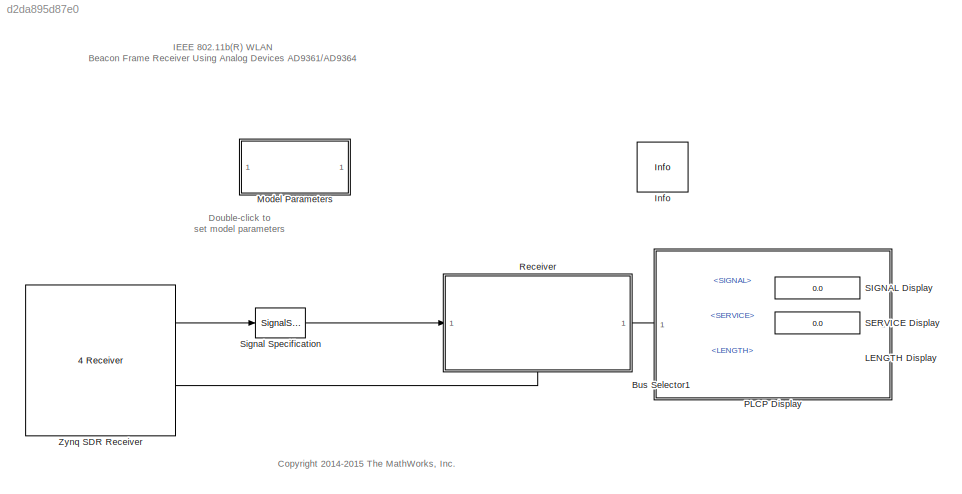
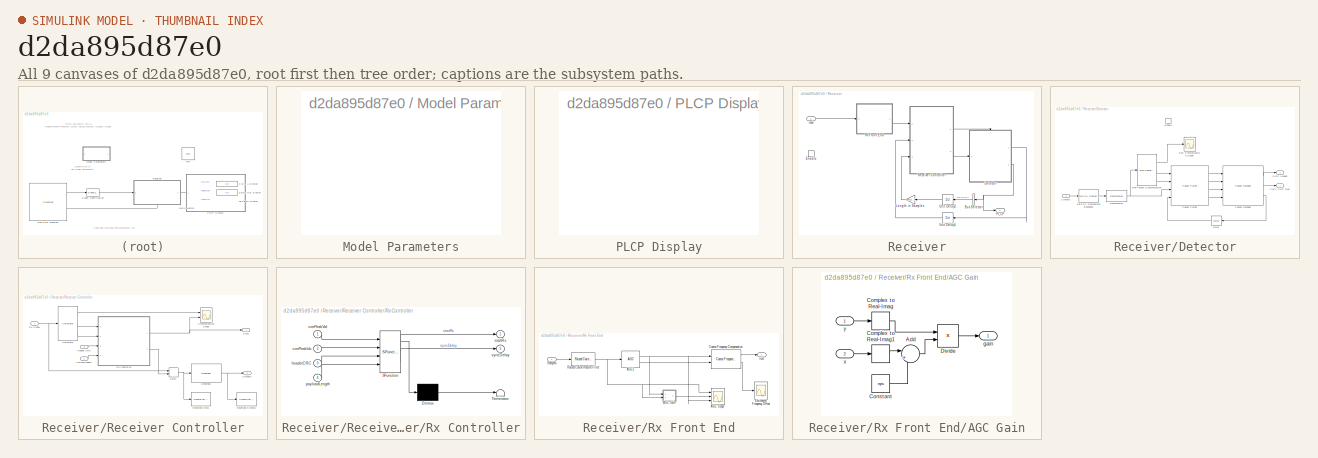
[diagram: thumbnail index - all 9 canvases of the model, root first then tree order]
MODEL slx_d2da895d87e0
KIND model
CONFIG AbsTol = auto
CONFIG FixedStep = auto
CONFIG InitFcn = load('commwlan80211BusTypes')
CONFIG MaxStep = auto
CONFIG MinStep = auto
CONFIG PostLoadFcn = zynqRadioWLAN80211BeaconRxAD9361AD9364SL_init('scope');\n
CONFIG PreLoadFcn = load('commwlan80211BusTypes')\nzynqRadioWLAN80211BeaconRxAD9361AD9364SL_init('init');\nopenMPDUGUI = true;\n\n
CONFIG RelTol = 1e-3
CONFIG SampleTimeConstraint = Unconstrained
CONFIG Solver = FixedStepDiscrete
CONFIG SolverMode = SingleTasking
CONFIG SolverName = FixedStepDiscrete
CONFIG StartTime = 0.0
CONFIG StopTime = Inf
WORKSPACE source: external: MAT-File  (data not in archive)
BLOCK [BusSelector] Bus Selector1
  OutputSignals = SIGNAL,SERVICE,LENGTH
  Ports = [1, 3]
BLOCK [Reference] Info  REF=sdrzblksprivate/Info
  Ports = []
  SourceBlock = sdrzblksprivate/Info
  SourceType = Info
BLOCK [Display] LENGTH Display
  Decimation = 1
  Ports = [1]
BLOCK [SubSystem] Model Parameters
  Ports = []
  RequestExecContextInheritance = off
  Variant = off
BLOCK [SubSystem] PLCP Display
  Ports = []
  RequestExecContextInheritance = off
  Variant = off
BLOCK [SubSystem] Receiver
  Ports = [1, 1, 1]
  RequestExecContextInheritance = off
  Variant = off
BLOCK [BusSelector] Receiver/Bus Selector
  OutputSignals = LENGTH
  Ports = [1, 1]
BLOCK [SubSystem] Receiver/Detector
  CloseFcn = clear BeaconFrameBodyType rcvd
  Ports = [1, 2, 1]
  RequestExecContextInheritance = off
  Variant = off
BLOCK [Reference] Receiver/Detector/DBPSK Demodulator Baseband  REF=commdigbbndpm3/DBPSK
Demodulator
Baseband
  Ports = [1, 1]
  SourceBlock = commdigbbndpm3/DBPSK\nDemodulator\nBaseband
  SourceType = DBPSK Demodulator Baseband
BLOCK [Delay] Receiver/Detector/Delay
  DelayLength = 1
  InitialCondition = 0
  InputPortMap = u0
  InputProcessing = Columns as channels (frame based)
  Ports = [1, 1]
  UserDataPersistent = on
BLOCK [Reference] Receiver/Detector/Descrambler  REF=commsequence2/Descrambler
  Ports = [1, 1]
  SourceBlock = commsequence2/Descrambler
  SourceType = Descrambler
BLOCK [EnablePort] Receiver/Detector/Enable
  Ports = []
  PropagateVarSize = During execution
  StatesWhenEnabling = reset
BLOCK [Reference] Receiver/Detector/Fine Packet Synchronization  REF=commwlan80211BeaconLib/Fine Packet
Synchronization
  Ports = [1, 3]
  SourceBlock = commwlan80211BeaconLib/Fine Packet\nSynchronization
  SourceType = SubSystem
BLOCK [Outport] Receiver/Detector/PLCP CRC Flag
  IconDisplay = Port number
  InitialOutput = 1
BLOCK [Outport] Receiver/Detector/PLCP Header
  IconDisplay = Port number
  Port = 2
BLOCK [Reference] Receiver/Detector/Packet Decoder  REF=commwlan80211BeaconLib/Packet Decoder
  Ports = [4, 3]
  SourceBlock = commwlan80211BeaconLib/Packet Decoder
  SourceType = SubSystem
BLOCK [Reference] Receiver/Detector/Packet Parser  REF=commwlan80211BeaconLib/Packet Parser
  Ports = [4, 4]
  SourceBlock = commwlan80211BeaconLib/Packet Parser
  SourceType = SubSystem
BLOCK [Scope] Receiver/Detector/SFD Synchronization Scope
  DefaultConfigurationName = spbscopes.TimeScopeBlockCfg
  Ports = [1]
  Priority = 10
  ScopeSpecificationString = spbscopes.TimeScopeBlockCfg('CurrentConfiguration', extmgr.ConfigurationSet(extmgr.Configuration('Core','General UI',true),extmgr.Configuration('Core','Source UI',true),extmgr.Configuration('Sources','WiredSimulink',true),extmgr.Configuration('Visuals','Time Domain',true,'DisplayPropertyDefaults',struct('MinYLimReal','-15.5','MaxYLimReal','19.5','YLabelReal','Amplitude','MinYLimMag','0','MaxYLimMa...<+1393ch>
BLOCK [Inport] Receiver/Detector/Symbols
  IconDisplay = Port number
BLOCK [EnablePort] Receiver/Enable
  Ports = []
BLOCK [Gain] Receiver/Length in Samples
  Gain = p80211.SamplesPerChip*p80211.SpreadingRate
  OutDataTypeStr = uint32
BLOCK [Outport] Receiver/PLCP
  IconDisplay = Port number
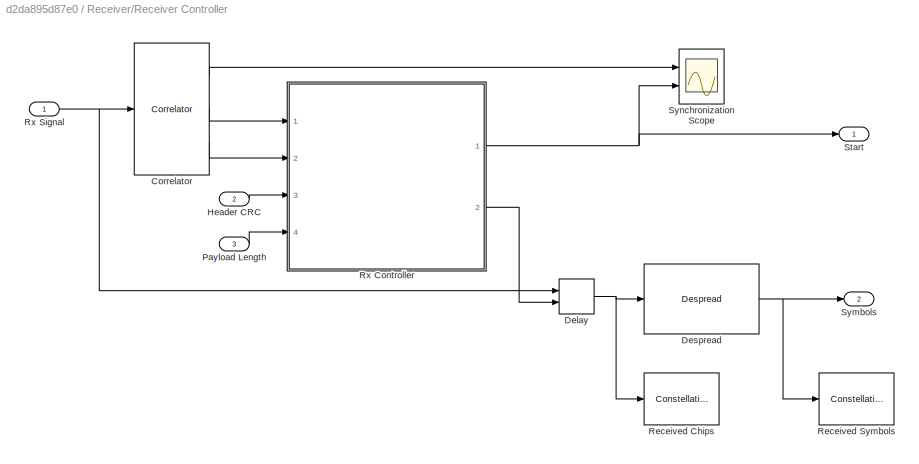
BLOCK [SubSystem] Receiver/Receiver Controller
  Ports = [3, 2]
  RequestExecContextInheritance = off
  Variant = off
BLOCK [Reference] Receiver/Receiver Controller/Correlator  REF=commwlan80211BeaconLib/Correlator
  Ports = [1, 3]
  SourceBlock = commwlan80211BeaconLib/Correlator
  SourceType = SubSystem
BLOCK [Delay] Receiver/Receiver Controller/Delay
  DelayLengthSource = Input port
  DelayLengthUpperLimit = p80211.SamplesPerChannelFrame
  InputPortMap = u0,p1
  InputProcessing = Columns as channels (frame based)
  Ports = [2, 1]
BLOCK [Reference] Receiver/Receiver Controller/Despread  REF=commwlan80211BeaconLib/Despread
  Ports = [1, 1]
  SourceBlock = commwlan80211BeaconLib/Despread
  SourceType = SubSystem
BLOCK [Inport] Receiver/Receiver Controller/Header CRC
  IconDisplay = Port number
  Port = 2
BLOCK [Inport] Receiver/Receiver Controller/Payload Length
  IconDisplay = Port number
  Port = 3
BLOCK [ConstellationDiagram] Receiver/Receiver Controller/Received Chips
  Ports = [1]
  Priority = 1
  ScopeSpecificationString = comm.scopes.ConstellationDiagramBlockCfg('CurrentConfiguration', extmgr.ConfigurationSet(extmgr.Configuration('Core','General UI',true,'ShowConfiguration',true),extmgr.Configuration('Core','Source UI',true,'ShowPlaybackCmdMode',false),extmgr.Configuration('Sources','WiredSimulink',true),extmgr.Configuration('Visuals','Constellation',true,'MinYLim','-0.88387','MaxYLim','0.88387','MinXLim','-0.88387...<+1559ch>
  Tag = ScatterPlot
BLOCK [ConstellationDiagram] Receiver/Receiver Controller/Received Symbols
  Ports = [1]
  Priority = 2
  ScopeSpecificationString = comm.scopes.ConstellationDiagramBlockCfg('CurrentConfiguration', extmgr.ConfigurationSet(extmgr.Configuration('Core','General UI',true,'ShowConfiguration',true),extmgr.Configuration('Core','Source UI',true,'ShowPlaybackCmdMode',false),extmgr.Configuration('Sources','WiredSimulink',true),extmgr.Configuration('Visuals','Constellation',true,'MinYLim','-1.4322','MaxYLim','1.5131','MinXLim','-1.4322','...<+1560ch>
  Tag = ScatterPlot
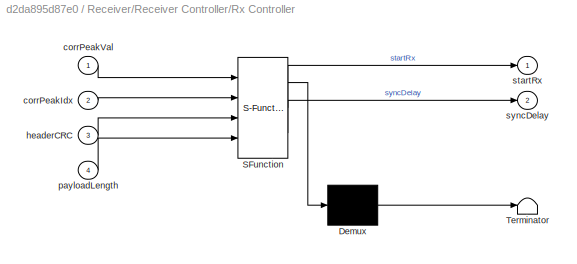
BLOCK [SubSystem] Receiver/Receiver Controller/Rx Controller
  ErrorFcn = Stateflow.Translate.translate
  PermitHierarchicalResolution = ExplicitOnly
  Ports = [4, 2]
  RequestExecContextInheritance = off
  SFBlockType = MATLAB Function
  TreatAsAtomicUnit = on
  Variant = off
BLOCK [Demux] Receiver/Receiver Controller/Rx Controller/ Demux 
  Outputs = 1
  Ports = [1, 1]
BLOCK [S-Function] Receiver/Receiver Controller/Rx Controller/ SFunction 
  EnableBusSupport = off
  FunctionName = sf_sfun
  Parameters = p80211
  PortCounts = [4 3]
  Ports = [4, 3]
  SFunctionDeploymentMode = off
  Tag = Stateflow S-Function zynqRadioWLAN80211BeaconRxAD9361AD9364SL 4
BLOCK [Terminator] Receiver/Receiver Controller/Rx Controller/ Terminator 
BLOCK [Inport] Receiver/Receiver Controller/Rx Controller/corrPeakIdx
  IconDisplay = Port number
  Port = 2
BLOCK [Inport] Receiver/Receiver Controller/Rx Controller/corrPeakVal
  IconDisplay = Port number
BLOCK [Inport] Receiver/Receiver Controller/Rx Controller/headerCRC
  IconDisplay = Port number
  Port = 3
BLOCK [Inport] Receiver/Receiver Controller/Rx Controller/payloadLength
  IconDisplay = Port number
  Port = 4
BLOCK [Outport] Receiver/Receiver Controller/Rx Controller/startRx
  IconDisplay = Port number
BLOCK [Outport] Receiver/Receiver Controller/Rx Controller/syncDelay
  IconDisplay = Port number
  Port = 2
BLOCK [Inport] Receiver/Receiver Controller/Rx Signal
  IconDisplay = Port number
BLOCK [Outport] Receiver/Receiver Controller/Start
  IconDisplay = Port number
BLOCK [Outport] Receiver/Receiver Controller/Symbols
  IconDisplay = Port number
  Port = 2
BLOCK [Scope] Receiver/Receiver Controller/Synchronization Scope
  DefaultConfigurationName = spbscopes.TimeScopeBlockCfg
  NumInputPorts = 2
  Ports = [2]
  Priority = 1
  ScopeSpecificationString = spbscopes.TimeScopeBlockCfg('CurrentConfiguration', extmgr.ConfigurationSet(extmgr.Configuration('Core','General UI',true),extmgr.Configuration('Core','Source UI',true),extmgr.Configuration('Sources','WiredSimulink',true),extmgr.Configuration('Visuals','Time Domain',true,'DisplayLayoutDimensions',[2 1],'DisplayPropertyDefaults',struct('YLabelReal','Amplitude','AxesColor',[0 0 0],'AxesTickColor',[0...<+1986ch>
BLOCK [SubSystem] Receiver/Rx Front End
  Ports = [1, 1]
  RequestExecContextInheritance = off
  Variant = off
BLOCK [SubSystem] Receiver/Rx Front End/AGC Gain
  Ports = [2, 1]
  RequestExecContextInheritance = off
  Variant = off
BLOCK [Sum] Receiver/Rx Front End/AGC Gain/Add
  IconShape = round
  InputSameDT = off
  Inputs = |++
  OutDataTypeStr = Inherit: Inherit via internal rule
  Ports = [2, 1]
  SaturateOnIntegerOverflow = off
BLOCK [ComplexToRealImag] Receiver/Rx Front End/AGC Gain/Complex to Real-Imag
  Output = Real
  Ports = [1, 1]
BLOCK [ComplexToRealImag] Receiver/Rx Front End/AGC Gain/Complex to Real-Imag1
  Output = Real
  Ports = [1, 1]
BLOCK [Constant] Receiver/Rx Front End/AGC Gain/Constant
  Value = eps
BLOCK [Product] Receiver/Rx Front End/AGC Gain/Divide
  InputSameDT = off
  Inputs = */
  OutDataTypeStr = Inherit: Inherit via internal rule
  Ports = [2, 1]
  RndMeth = Floor
  SaturateOnIntegerOverflow = off
BLOCK [Outport] Receiver/Rx Front End/AGC Gain/gain
  IconDisplay = Port number
BLOCK [Inport] Receiver/Rx Front End/AGC Gain/x
  IconDisplay = Port number
  Port = 2
BLOCK [Inport] Receiver/Rx Front End/AGC Gain/y
  IconDisplay = Port number
BLOCK [Scope] Receiver/Rx Front End/AGC Scope
  DefaultConfigurationName = spbscopes.TimeScopeBlockCfg
  NumInputPorts = 3
  Ports = [3]
  ScopeSpecificationString = spbscopes.TimeScopeBlockCfg('CurrentConfiguration', extmgr.ConfigurationSet(extmgr.Configuration('Core','General UI',true),extmgr.Configuration('Core','Source UI',true),extmgr.Configuration('Sources','WiredSimulink',true),extmgr.Configuration('Visuals','Time Domain',true,'DisplayLayoutDimensions',[3 1],'DisplayPropertyDefaults',struct('YLabelReal','Amplitude','AxesColor',[0 0 0],'AxesTickColor',[0...<+2632ch>
BLOCK [Reference] Receiver/Rx Front End/AGC1  REF=commrfcorlib/AGC
  Ports = [1, 2]
  SourceBlock = commrfcorlib/AGC
  SourceType = AGC
BLOCK [Reference] Receiver/Rx Front End/Coarse Frequency Compensation  REF=commwlan80211BeaconLib/Coarse Frequency
Compensation
  Ports = [2, 2]
  SourceBlock = commwlan80211BeaconLib/Coarse Frequency\nCompensation
  SourceType = Coarse Frequency Compensation
BLOCK [Scope] Receiver/Rx Front End/Estimated Frequency Offset
  DefaultConfigurationName = spbscopes.TimeScopeBlockCfg
  Ports = [1]
  ScopeSpecificationString = spbscopes.TimeScopeBlockCfg('CurrentConfiguration', extmgr.ConfigurationSet(extmgr.Configuration('Core','General UI',true),extmgr.Configuration('Core','Source UI',true),extmgr.Configuration('Sources','WiredSimulink',true),extmgr.Configuration('Visuals','Time Domain',true,'DisplayPropertyDefaults',struct('MinYLimReal','-62377.3','MaxYLimReal','62424.1','YLabelReal','Amplitude','MinYLimMag','0','Max...<+1411ch>
BLOCK [Reference] Receiver/Rx Front End/Raised Cosine Receive Filter  REF=commfilt2/Raised Cosine
Receive Filter
  Ports = [1, 1]
  SourceBlock = commfilt2/Raised Cosine\nReceive Filter
  SourceType = Raised Cosine Receive Filter
  UserDataPersistent = on
BLOCK [Inport] Receiver/Rx Front End/Samples
  IconDisplay = Port number
BLOCK [Outport] Receiver/Rx Front End/rcvd
  IconDisplay = Port number
BLOCK [UnitDelay] Receiver/Unit Delay1
  InitialCondition = 1
  InputProcessing = Elements as channels (sample based)
  SampleTime = -1
BLOCK [UnitDelay] Receiver/Unit Delay2
  InitialCondition = 1
  InputProcessing = Elements as channels (sample based)
  SampleTime = -1
BLOCK [Inport] Receiver/rcvd
  IconDisplay = Port number
BLOCK [Display] SERVICE Display
  Decimation = 1
  Format = hex (Stored Integer)
  Ports = [1]
BLOCK [Display] SIGNAL Display
  Decimation = 1
  Format = hex (Stored Integer)
  Ports = [1]
BLOCK [SignalSpecification] Signal Specification
  SampleTime = p80211.RadioFrameLength/p80211.RadioBasebandRate
BLOCK [Reference] Zynq SDR Receiver  REF=zc706fmc234_lib/ZC706 and 
FMCOMMS2//3//4 
Receiver
  Ports = [0, 2]
  SourceBlock = zc706fmc234_lib/ZC706 and \nFMCOMMS2//3//4 \nReceiver
  SourceType = comm.internal.SDRRxZC706FMC234SL
ANNOTATION (root): IEEE 802.11b(R) WLAN Beacon Frame Receiver Using Analog Devices AD9361/AD9364
ANNOTATION (root): <copyright redacted>
ANNOTATION (root): Double-click to set model parameters
LINE Bus Selector1:1 -> SIGNAL Display:1
LINE Bus Selector1:2 -> SERVICE Display:1
LINE Bus Selector1:3 -> LENGTH Display:1
LINE Receiver/Bus Selector:1 -> Receiver/Unit Delay2:1
LINE Receiver/Detector/DBPSK Demodulator Baseband:1 -> Receiver/Detector/Descrambler:1
LINE Receiver/Detector/Delay:1 -> Receiver/Detector/Packet Parser:4
NET Receiver/Detector/Descrambler:1 -> Receiver/Detector/Fine Packet Synchronization:1, Receiver/Detector/Packet Parser:3
LINE Receiver/Detector/Fine Packet Synchronization:1 -> Receiver/Detector/SFD Synchronization Scope:1
LINE Receiver/Detector/Fine Packet Synchronization:2 -> Receiver/Detector/Packet Parser:1
LINE Receiver/Detector/Fine Packet Synchronization:3 -> Receiver/Detector/Packet Parser:2
LINE Receiver/Detector/Packet Decoder:1 -> Receiver/Detector/PLCP Header:1
LINE Receiver/Detector/Packet Decoder:2 -> Receiver/Detector/PLCP CRC Flag:1
LINE Receiver/Detector/Packet Decoder:3 -> Receiver/Detector/Delay:1
LINE Receiver/Detector/Packet Parser:1 -> Receiver/Detector/Packet Decoder:1
LINE Receiver/Detector/Packet Parser:2 -> Receiver/Detector/Packet Decoder:2
LINE Receiver/Detector/Packet Parser:3 -> Receiver/Detector/Packet Decoder:3
LINE Receiver/Detector/Packet Parser:4 -> Receiver/Detector/Packet Decoder:4
LINE Receiver/Detector/Symbols:1 -> Receiver/Detector/DBPSK Demodulator Baseband:1
LINE Receiver/Detector:1 -> Receiver/Unit Delay1:1
NET Receiver/Detector:2 -> Receiver/Bus Selector:1, Receiver/PLCP:1
LINE Receiver/Length in Samples:1 -> Receiver/Receiver Controller:3
LINE Receiver/Receiver Controller/Correlator:1 -> Receiver/Receiver Controller/Synchronization Scope:1
LINE Receiver/Receiver Controller/Correlator:2 -> Receiver/Receiver Controller/Rx Controller:1
LINE Receiver/Receiver Controller/Correlator:3 -> Receiver/Receiver Controller/Rx Controller:2
NET Receiver/Receiver Controller/Delay:1 -> Receiver/Receiver Controller/Despread:1, Receiver/Receiver Controller/Received Chips:1
NET Receiver/Receiver Controller/Despread:1 -> Receiver/Receiver Controller/Received Symbols:1, Receiver/Receiver Controller/Symbols:1
LINE Receiver/Receiver Controller/Header CRC:1 -> Receiver/Receiver Controller/Rx Controller:3
LINE Receiver/Receiver Controller/Payload Length:1 -> Receiver/Receiver Controller/Rx Controller:4
NET Receiver/Receiver Controller/Rx Controller:1 -> Receiver/Receiver Controller/Start:1, Receiver/Receiver Controller/Synchronization Scope:2
LINE Receiver/Receiver Controller/Rx Controller:2 -> Receiver/Receiver Controller/Delay:2
NET Receiver/Receiver Controller/Rx Signal:1 -> Receiver/Receiver Controller/Correlator:1, Receiver/Receiver Controller/Delay:1
LINE Receiver/Receiver Controller:1 -> Receiver/Detector:enable
LINE Receiver/Receiver Controller:2 -> Receiver/Detector:1
LINE Receiver/Rx Front End/AGC Gain/Add:1 -> Receiver/Rx Front End/AGC Gain/Divide:2
LINE Receiver/Rx Front End/AGC Gain/Complex to Real-Imag1:1 -> Receiver/Rx Front End/AGC Gain/Add:1
LINE Receiver/Rx Front End/AGC Gain/Complex to Real-Imag:1 -> Receiver/Rx Front End/AGC Gain/Divide:1
LINE Receiver/Rx Front End/AGC Gain/Constant:1 -> Receiver/Rx Front End/AGC Gain/Add:2
LINE Receiver/Rx Front End/AGC Gain/Divide:1 -> Receiver/Rx Front End/AGC Gain/gain:1
LINE Receiver/Rx Front End/AGC Gain/x:1 -> Receiver/Rx Front End/AGC Gain/Complex to Real-Imag1:1
LINE Receiver/Rx Front End/AGC Gain/y:1 -> Receiver/Rx Front End/AGC Gain/Complex to Real-Imag:1
LINE Receiver/Rx Front End/AGC Gain:1 -> Receiver/Rx Front End/AGC Scope:2
NET Receiver/Rx Front End/AGC1:1 -> Receiver/Rx Front End/AGC Gain:1, Receiver/Rx Front End/AGC Scope:3, Receiver/Rx Front End/Coarse Frequency Compensation:1
LINE Receiver/Rx Front End/AGC1:2 -> Receiver/Rx Front End/Coarse Frequency Compensation:2
LINE Receiver/Rx Front End/Coarse Frequency Compensation:1 -> Receiver/Rx Front End/rcvd:1
LINE Receiver/Rx Front End/Coarse Frequency Compensation:2 -> Receiver/Rx Front End/Estimated Frequency Offset:1
NET Receiver/Rx Front End/Raised Cosine Receive Filter:1 -> Receiver/Rx Front End/AGC Gain:2, Receiver/Rx Front End/AGC Scope:1, Receiver/Rx Front End/AGC1:1
LINE Receiver/Rx Front End/Samples:1 -> Receiver/Rx Front End/Raised Cosine Receive Filter:1
LINE Receiver/Rx Front End:1 -> Receiver/Receiver Controller:1
LINE Receiver/Unit Delay1:1 -> Receiver/Receiver Controller:2
LINE Receiver/Unit Delay2:1 -> Receiver/Length in Samples:1
LINE Receiver/rcvd:1 -> Receiver/Rx Front End:1
LINE Receiver:1 -> Bus Selector1:1
LINE Signal Specification:1 -> Receiver:1
LINE Zynq SDR Receiver:1 -> Signal Specification:1
LINE Zynq SDR Receiver:2 -> Receiver:enable
note: NET lines group one-source signal fan-out (src -> all destinations, sorted); 1:1 wires keep LINE
CHART Receiver/Receiver Controller/Rx Controller states=1 transitions=1
  STATE_LABEL 'eML_blk_kernel()'
  STATE_LABEL 'SCRIPT:\nfunction [startRx, syncDelay] = ...\n  rxCtrl(corrPeakVal, corrPeakIdx, headerCRC, payloadLength, p80211)\n%#codegen\n\npersistent rxOn controllerState payloadCount lastSyncDelay corrPeakValOld\n\n% State Enums\nSearchPLCP = 0;\nGetPLCP    = 2;\nGetPayload = 4;\n\nif isempty(rxOn)\n  % Initialize receiver controller\n  rxOn = false;\n  controllerState = SearchPLCP;\n  payloadCount = 0;\n  lastSyncDelay = ...<+1673ch>'
